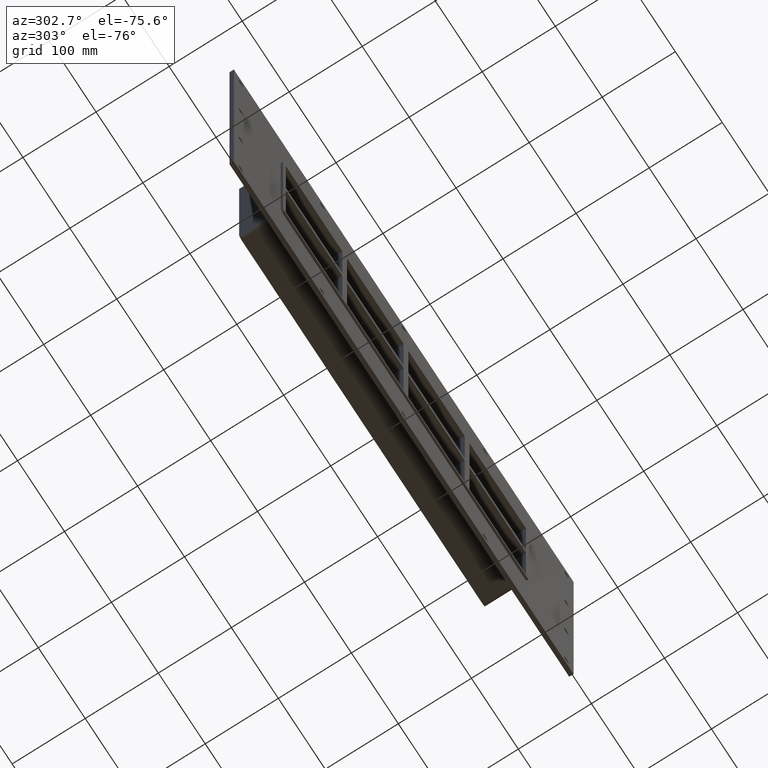
[diagram: clean part render]
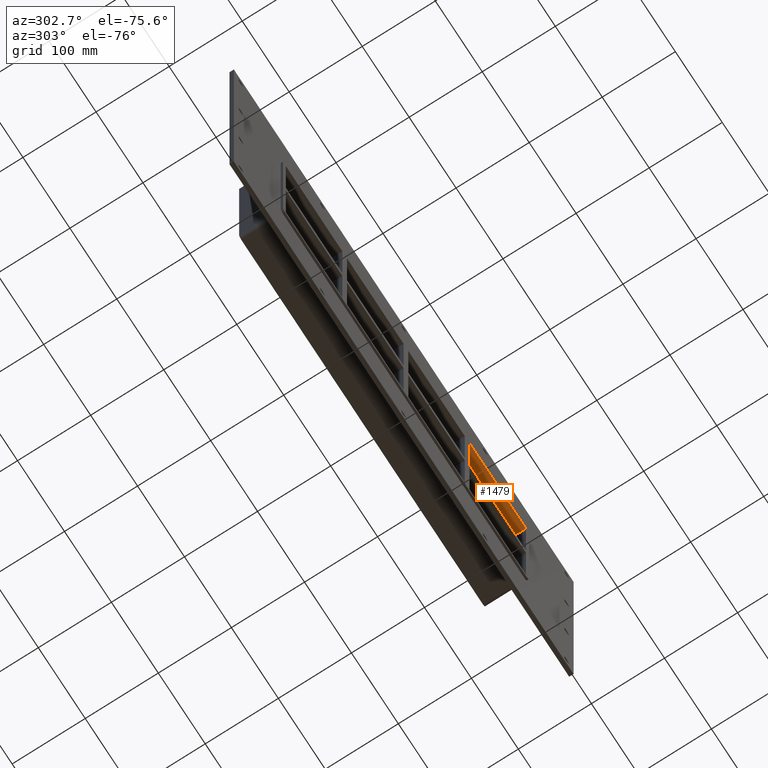
[diagram: same view with one face highlighted and labeled with its STEP entity id]
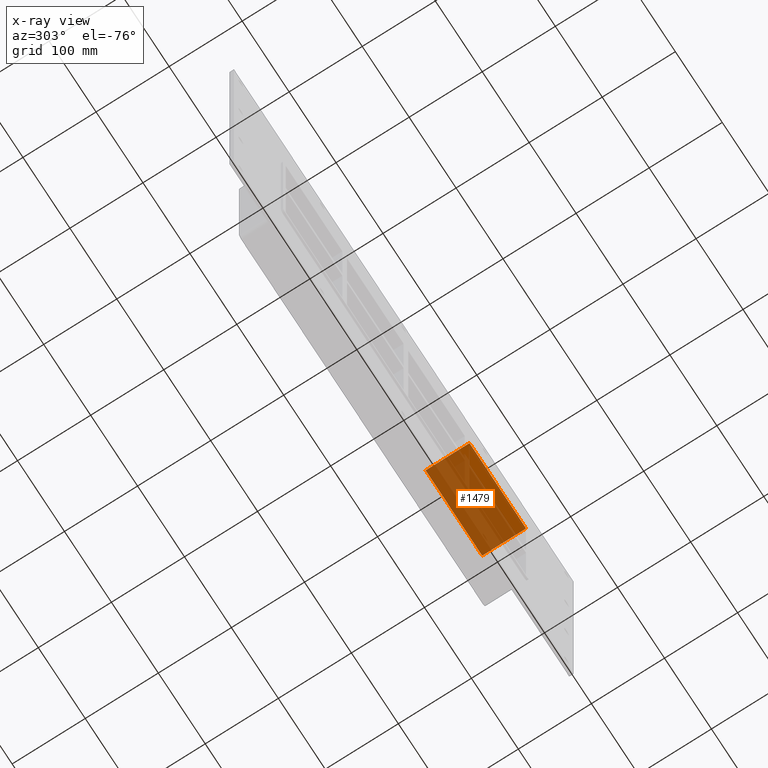
[diagram: x-ray of the same camera — body ghosted, the highlighted face saturated]
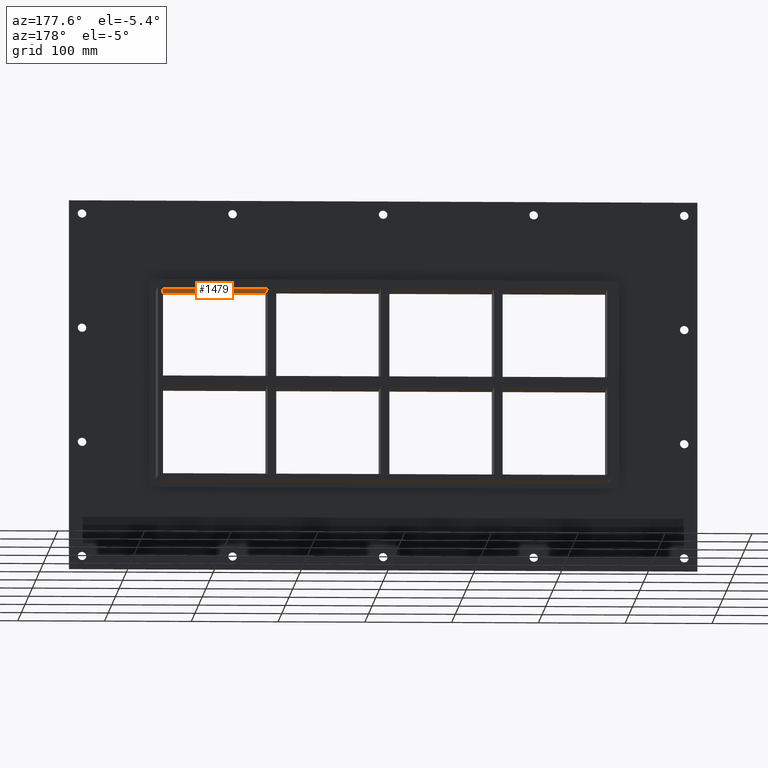
[diagram: same view with one face highlighted and labeled with its STEP entity id]
A machine part, auxiliary view. The second image highlights one B-rep face of the part: STEP entity #1479.
The next image is the same camera in x-ray: the body ghosted, the highlighted face saturated — about 77% of this face is hidden behind the body in this view.
A second angle (auxiliary view) of the same face is appended — the face is thin or edge-on in the first view.
In plain terms, the highlighted planar face has unit normal (0, 0, 1).
Its self-contained STEP definition (entity closure, byte-faithful):
#555=CARTESIAN_POINT('',(135.50000000000728,57.0,107.0));
#556=VERTEX_POINT('',#555);
#563=CARTESIAN_POINT('',(135.50000000000728,-3.0,107.0));
#564=VERTEX_POINT('',#563);
#565=CARTESIAN_POINT('',(135.50000000000728,-3.0,107.0));
#566=DIRECTION('',(0.0,1.0,0.0));
#567=VECTOR('',#566,60.000000000000007);
#568=LINE('',#565,#567);
#569=EDGE_CURVE('',#564,#556,#568,.T.);
#1010=CARTESIAN_POINT('',(255.99999999999997,-3.0,107.0));
#1011=VERTEX_POINT('',#1010);
#1012=CARTESIAN_POINT('',(135.50000000000728,-3.0,107.0));
#1013=DIRECTION('',(1.0,0.0,0.0));
#1014=VECTOR('',#1013,120.49999999999272);
#1015=LINE('',#1012,#1014);
#1016=EDGE_CURVE('',#564,#1011,#1015,.T.);
#1263=CARTESIAN_POINT('',(255.99999999999997,57.0,107.0));
#1264=VERTEX_POINT('',#1263);
#1271=CARTESIAN_POINT('',(256.0,57.0,107.0));
#1272=DIRECTION('',(-1.0,0.0,0.0));
#1273=VECTOR('',#1272,120.49999999999272);
#1274=LINE('',#1271,#1273);
#1275=EDGE_CURVE('',#1264,#556,#1274,.T.);
#1463=CARTESIAN_POINT('',(-256.0,0.0,107.0));
#1464=DIRECTION('',(0.0,0.0,1.0));
#1465=DIRECTION('',(1.0,0.0,0.0));
#1466=AXIS2_PLACEMENT_3D('',#1463,#1464,#1465);
#1467=PLANE('',#1466);
#1468=ORIENTED_EDGE('',*,*,#569,.T.);
#1469=ORIENTED_EDGE('',*,*,#1275,.F.);
#1470=CARTESIAN_POINT('',(255.99999999999997,-3.0,107.0));
#1471=DIRECTION('',(0.0,1.0,0.0));
#1472=VECTOR('',#1471,60.0);
#1473=LINE('',#1470,#1472);
#1474=EDGE_CURVE('',#1011,#1264,#1473,.T.);
#1475=ORIENTED_EDGE('',*,*,#1474,.F.);
#1476=ORIENTED_EDGE('',*,*,#1016,.F.);
#1477=EDGE_LOOP('',(#1468,#1469,#1475,#1476));
#1478=FACE_OUTER_BOUND('',#1477,.T.);
#1479=ADVANCED_FACE('',(#1478),#1467,.F.);